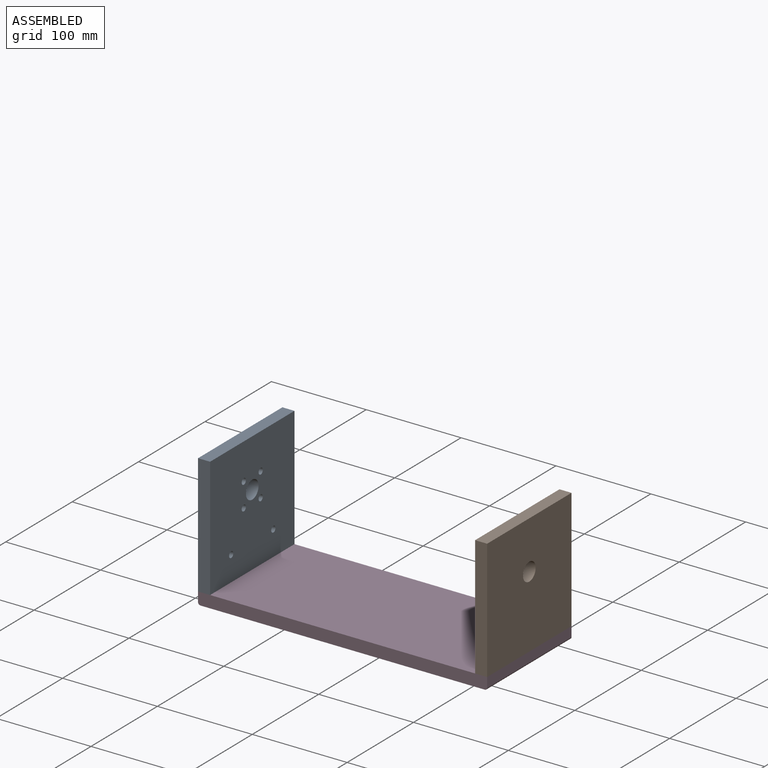
[diagram: assembled view]
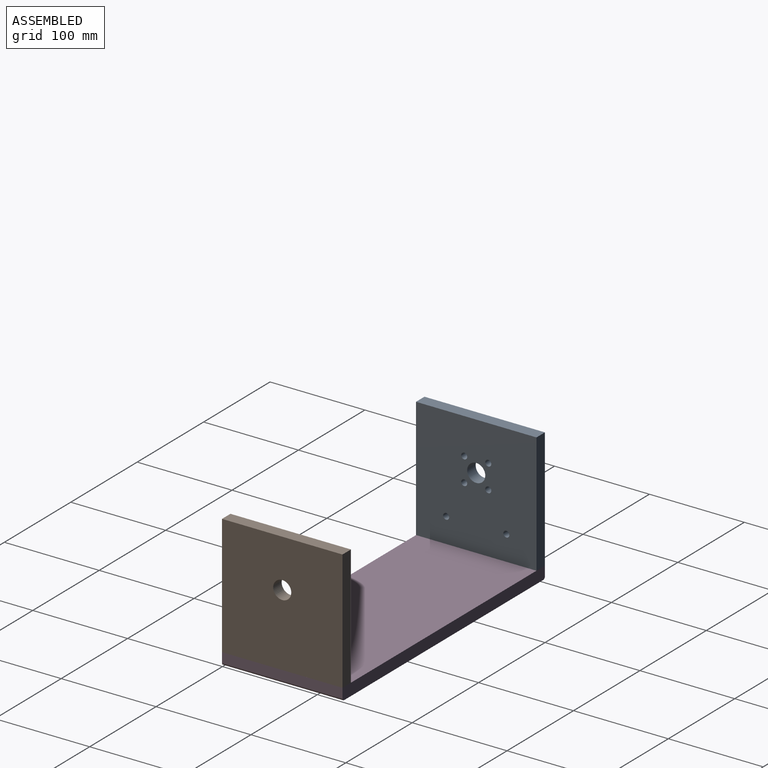
[diagram: assembled view, second angle]
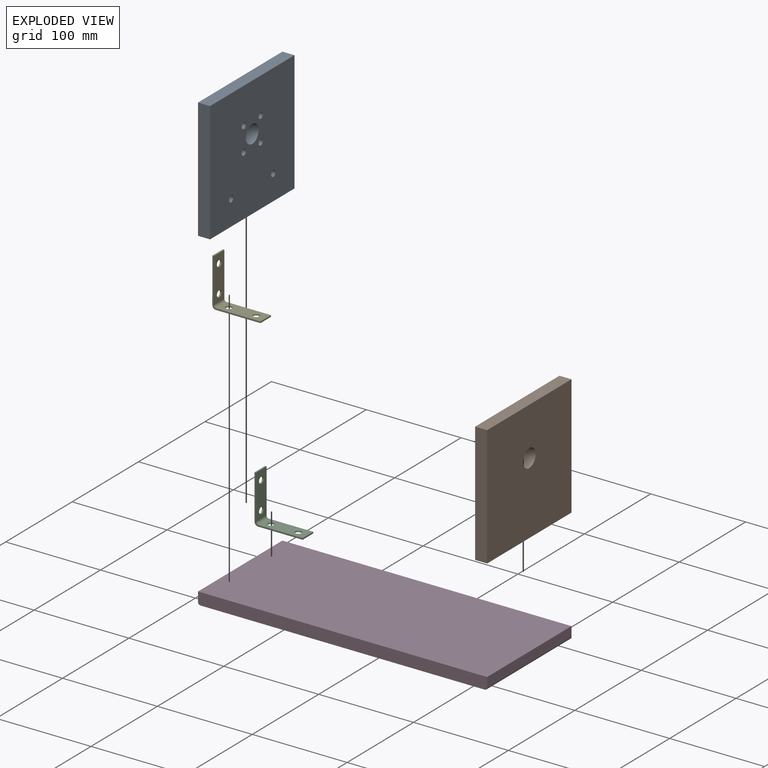
[diagram: exploded view]
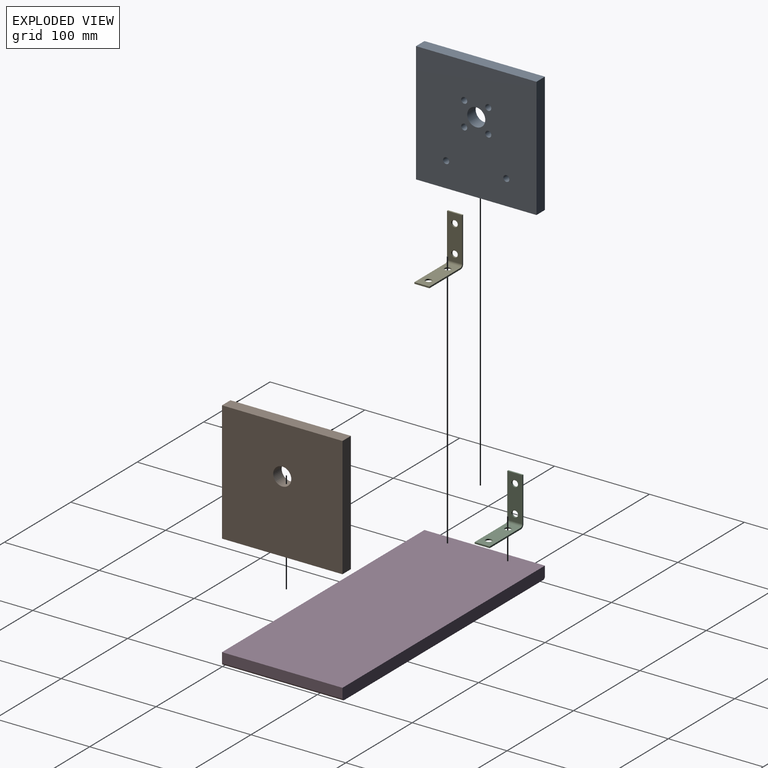
[diagram: exploded view, second angle]
ASSEMBLY  parts=5 mates=4
PART A: 13 faces, bbox 12.7x127x127 mm
  f0: plane 127x127mm, normal (-1,0,0), area 15654mm2, adj f1,f3,f4,f5,f6,f7,f8,f9
  f1: plane 127x12.7mm, normal (0,0,-1), area 1612.9mm2, adj f0,f2,f4,f5
  f2: plane 127x127mm, normal (1,0,0), area 15654mm2, adj f1,f3,f4,f5,f6,f7,f8,f9
  f3: plane 127x12.7mm, normal (0,0,1), area 1612.9mm2, adj f0,f2,f4,f5
  f4: plane 127x12.7mm, normal (0,-1,0), area 1612.9mm2, adj f0,f1,f2,f3
  f5: plane 127x12.7mm, normal (0,1,0), area 1612.9mm2, adj f0,f1,f2,f3
  f6: cylinder r=9.53mm len=19.05mm, axis (-1,0,0), area 760.1mm2, adj f0,f2
  f7: cylinder r=3.17mm len=12.7mm, axis (-1,0,0), area 253.4mm2, adj f0,f2
  f8: cylinder r=3.17mm len=12.7mm, axis (-1,0,0), area 253.4mm2, adj f0,f2
  f9: cylinder r=3.17mm len=12.7mm, axis (-1,0,0), area 253.4mm2, adj f0,f2
  f10: cylinder r=3.17mm len=12.7mm, axis (-1,0,0), area 253.4mm2, adj f0,f2
  f11: cylinder r=3.17mm len=12.7mm, axis (-1,0,0), area 253.4mm2, adj f0,f2
  f12: cylinder r=3.17mm len=12.7mm, axis (-1,0,0), area 253.4mm2, adj f0,f2
PART B: 7 faces, bbox 127x12.7x127 mm
  f0: plane 127x12.7mm, normal (-1,0,0), area 1612.9mm2, adj f1,f4,f5,f6
  f1: plane 127x12.7mm, normal (0,0,-1), area 1612.9mm2, adj f0,f2,f5,f6
  f2: plane 127x12.7mm, normal (1,0,0), area 1612.9mm2, adj f1,f4,f5,f6
  f3: cylinder r=9.53mm len=19.05mm, axis (0,1,0), area 760.1mm2, adj f5,f6
  f4: plane 127x12.7mm, normal (0,0,1), area 1612.9mm2, adj f0,f2,f5,f6
  f5: plane 127x127mm, normal (0,-1,0), area 15844mm2, adj f0,f1,f2,f3,f4
  f6: plane 127x127mm, normal (0,1,0), area 15844mm2, adj f0,f1,f2,f3,f4
PART C: 22 faces, bbox 50.8x15.9x50.8 mm
  f0: plane 47x15.89mm, normal (-1,0,0), area 672mm2, adj f5,f6,f7,f13,f18,f19
  f1: plane 46.99x15.88mm, normal (0,0,-1), area 672mm2, adj f2,f6,f7,f13,f20,f21
  f2: plane 15.88x1.59mm, normal (1,0,0), area 25.2mm2, adj f1,f3,f6,f7
  f3: plane 46.62x15.88mm, normal (0,0,1), area 666.2mm2, adj f2,f6,f7,f12,f16,f17
  f4: plane 46.67x15.88mm, normal (1,0,0), area 667mm2, adj f5,f6,f7,f12,f14,f15
  f5: plane 15.88x1.59mm, normal (0,0,1), area 25.2mm2, adj f0,f4,f6,f7
  f6: plane 50.8x50.8mm, normal (0,-1,0), area 158.4mm2, adj f0,f1,f2,f3,f4,f5,f12,f13
  f7: plane 50.8x50.8mm, normal (0,1,0), area 158.4mm2, adj f0,f1,f2,f3,f4,f5,f12,f13
  f8: cylinder r=3.17mm len=6.35mm, axis (1,0,0), area 22.3mm2, adj f15,f19
  f9: cylinder r=3.17mm len=6.35mm, axis (1,0,0), area 21.7mm2, adj f14,f18
  f10: cylinder r=3.17mm len=6.35mm, axis (0,0,1), area 21.5mm2, adj f17,f20
  f11: cylinder r=3.17mm len=6.35mm, axis (0,0,1), area 21.5mm2, adj f16,f21
  f12: cylinder r=2.54mm len=15.88mm, axis (0,-1,0), area 63.3mm2, adj f3,f4,f6,f7
  f13: cylinder r=3.81mm len=15.88mm, axis (0,1,0), area 95.1mm2, adj f0,f1,f6,f7
  f14: cone r=3.17mm half-angle=45deg, axis (1,0,0), area 7.5mm2, adj f4,f9
  f15: cone r=3.17mm half-angle=45deg, axis (1,0,0), area 7.5mm2, adj f4,f8
  f16: cone r=3.17mm half-angle=45deg, axis (0,0,1), area 7.5mm2, adj f3,f11
  f17: cone r=3.17mm half-angle=45deg, axis (0,0,1), area 7.5mm2, adj f3,f10
  f18: bspline ~6.86x6.86mm, area 7.5mm2, adj f0,f9
  f19: bspline ~6.86x6.86mm, area 7.5mm2, adj f0,f8
  f20: cone r=3.17mm half-angle=45deg, axis (0,0,-1), area 7.5mm2, adj f1,f10
  f21: cone r=3.17mm half-angle=45deg, axis (0,0,-1), area 7.5mm2, adj f1,f11
PART D: 8 faces, bbox 304.8x127x12.7 mm
  f0: plane 127x10.16mm, normal (-1,0,0), area 1290.3mm2, adj f3,f4,f5,f6
  f1: plane 299.72x127mm, normal (0,0,-1), area 38064.4mm2, adj f4,f5,f6,f7
  f2: plane 127x10.16mm, normal (1,0,0), area 1290.3mm2, adj f3,f4,f5,f7
  f3: plane 304.8x127mm, normal (0,0,1), area 38709.6mm2, adj f0,f2,f4,f5
  f4: plane 304.8x12.7mm, normal (0,-1,0), area 3868.2mm2, adj f0,f1,f2,f3,f6,f7
  f5: plane 304.8x12.7mm, normal (0,1,0), area 3868.2mm2, adj f0,f1,f2,f3,f6,f7
  f6: cylinder r=2.54mm len=127mm, axis (0,1,0), area 506.7mm2, adj f0,f1,f4,f5
  f7: cylinder r=2.54mm len=127mm, axis (0,-1,0), area 506.7mm2, adj f1,f2,f4,f5
PART E: same geometry as C
PLACE A t=(-146.14,-0.33,69.43)mm
PLACE B rot(axis=(0,0,-1),90deg) t=(145.96,-0.33,69.43)mm
PLACE C t=(-139.8,31.42,5.43)mm
PLACE D t=(-0.09,-0.33,-0.42)mm
PLACE E t=(-139.8,-32.08,5.43)mm
MATE fastened E.f9 <-> A.f12  axis (1,0,0) through (-152.49,-32.08,32.28)mm
MATE fastened B.f1 <-> D.f3  axis (0,0,-1) through (145.96,-0.33,5.93)mm
MATE fastened C.f9 <-> A.f11  axis (1,0,0) through (-152.49,31.42,32.28)mm
MATE fastened A.f1 <-> D.f3  axis (0,0,-1) through (-146.14,-0.33,5.93)mm
